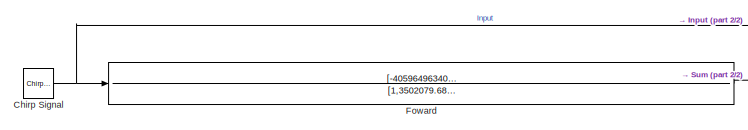
[diagram: root canvas - part 1/2, middle left region]
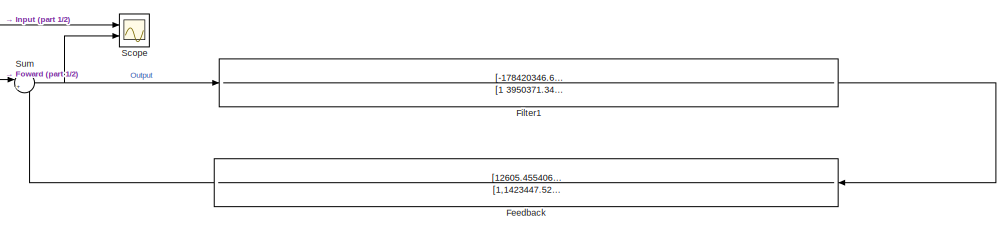
[diagram: root canvas - part 2/2, right side, full height]
MODEL slx_2e57fa160a31
KIND model
CONFIG AbsTol = auto
CONFIG EnableMultiTasking = off
CONFIG FixedStep = auto
CONFIG MaxStep = auto
CONFIG MinStep = auto
CONFIG RelTol = 1e-3
CONFIG SampleTimeConstraint = Unconstrained
CONFIG Solver = VariableStepAuto
CONFIG SolverName = VariableStepAuto
CONFIG StartTime = 0.0
CONFIG StopTime = 10.0
BLOCK [Reference] Chirp Signal  REF=simulink/Sources/Chirp Signal
  Ports = [0, 1]
  SourceBlock = simulink/Sources/Chirp Signal
  SourceProductBaseCode = SL
  SourceProductName = Simulink
  SourceType = chirp
BLOCK [TransferFcn] Feedback
  Denominator = [1,1423447.52999193,9421519136.03560,6422247005442.77,51913333436888.3,69117764201530.7]
  Numerator = [12605.4554063995,23229713663.4924,17234152953470.8,4398216306223.24,3018119162321.11]
BLOCK [TransferFcn] Filter1
  Denominator = [1 3950371.34849604 2417226.48105726 563973215830.732 0]
  Numerator = [-178420346.627485 -6336128258.59325 -56252722949.1992]
BLOCK [TransferFcn] Foward
  Denominator = [1,3502079.68268747,5589807862084.53,40022776635817.3,58077323621970.0]
  Numerator = [-40596496340164.1,-10055203430225.6,7778571084474.48]
BLOCK [Scope] Scope
  Floating = off
  NumInputPorts = 2
  Ports = [2]
  ScopeSpecificationString = Simulink.scopes.TimeScopeBlockCfg('CurrentConfiguration', extmgr.ConfigurationSet(extmgr.Configuration('Core','General UI',true),extmgr.Configuration('Core','Source UI',true),extmgr.Configuration('Sources','WiredSimulink',true),extmgr.Configuration('Visuals','Time Domain',true,'SerializedDisplays',{struct('MinYLimReal','-1.25','MaxYLimReal','1.25','YLabelReal','','MinYLimMag','0.00000','MaxYLimMag...<+2038ch>
BLOCK [Sum] Sum
  IconShape = round
  InputSameDT = off
  Inputs = |++
  OutDataTypeStr = Inherit: Inherit via internal rule
  OutMax = [100]
  OutMin = [-100]
  Ports = [2, 1]
  SaturateOnIntegerOverflow = off
NET Chirp Signal:1 -> Foward:1, Scope:1
LINE Feedback:1 -> Sum:2
LINE Filter1:1 -> Feedback:1
LINE Foward:1 -> Sum:1
NET Sum:1 -> Filter1:1, Scope:2
note: NET lines group one-source signal fan-out (src -> all destinations, sorted); 1:1 wires keep LINE
